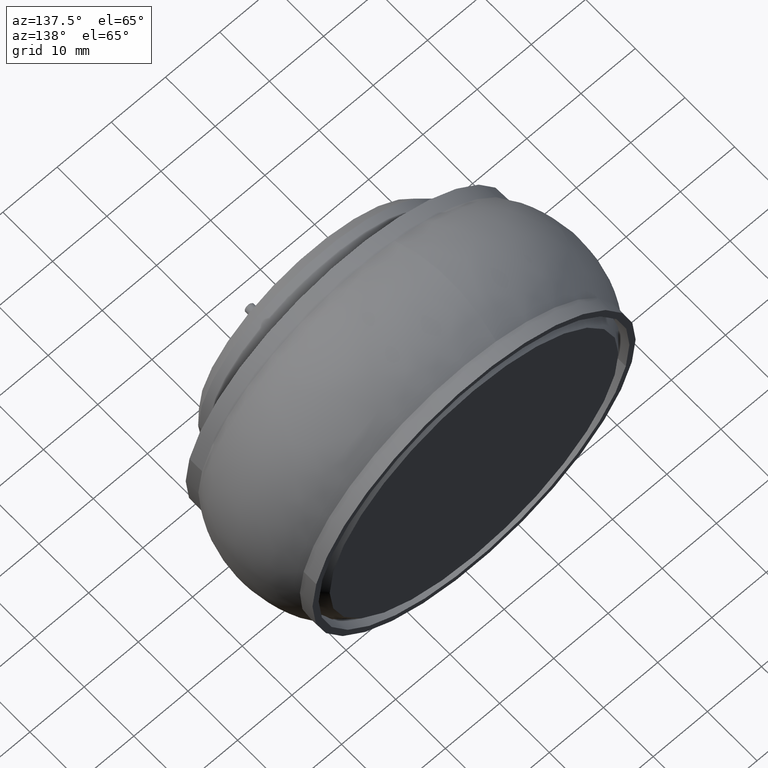
[diagram: clean part render]
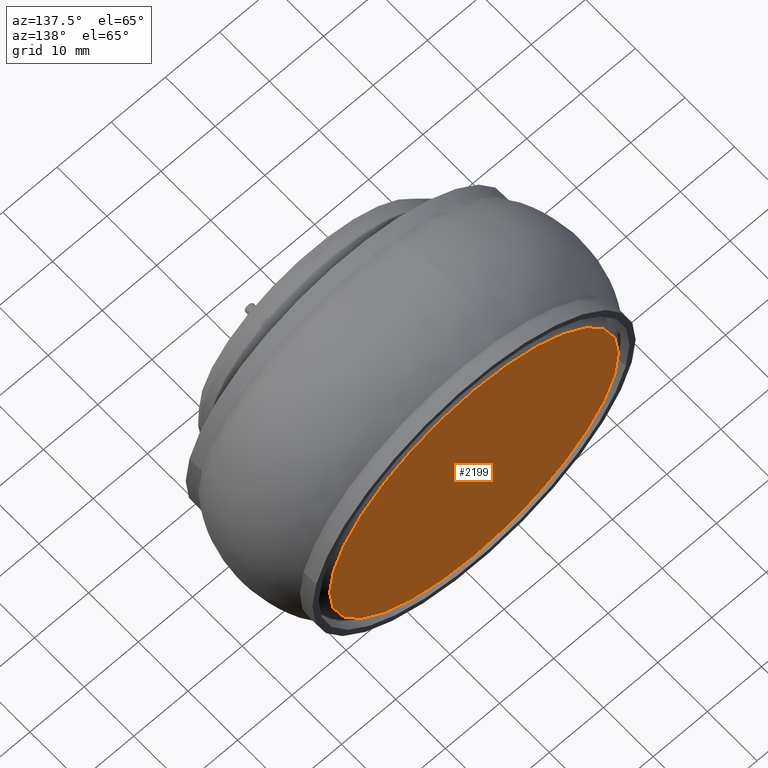
[diagram: same view with one face highlighted and labeled with its STEP entity id]
A machine part, auxiliary view. The second image highlights one B-rep face of the part: STEP entity #2199.
In plain terms, the highlighted planar face has unit normal (-0, 1, 0).
Its self-contained STEP definition (entity closure, byte-faithful):
#428 = DIRECTION ( 'NONE',  ( -0.0000000000000000000, 1.000000000000000000, -0.0000000000000000000 ) ) ;
#2199 = ADVANCED_FACE ( 'NONE', ( #10075 ), #3605, .T. ) ;
#2598 = DIRECTION ( 'NONE',  ( -0.0000000000000000000, 1.000000000000000000, -0.0000000000000000000 ) ) ;
#3605 = PLANE ( 'NONE',  #6462 ) ;
#3834 = DIRECTION ( 'NONE',  ( 0.0000000000000000000, 0.0000000000000000000, 1.000000000000000000 ) ) ;
#3905 = ORIENTED_EDGE ( 'NONE', *, *, #6062, .T. ) ;
#5714 = ORIENTED_EDGE ( 'NONE', *, *, #6251, .T. ) ;
#5833 = CARTESIAN_POINT ( 'NONE',  ( 0.0000000000000000000, 0.5490000000000003800, -1.048640772573399900 ) ) ;
#6062 = EDGE_CURVE ( 'NONE', #11084, #8089, #7871, .T. ) ;
#6251 = EDGE_CURVE ( 'NONE', #8089, #11084, #7698, .T. ) ;
#6462 = AXIS2_PLACEMENT_3D ( 'NONE', #14937, #7450, #12369 ) ;
#6712 = CARTESIAN_POINT ( 'NONE',  ( 0.0000000000000000000, 0.5490000000000003800, 0.0000000000000000000 ) ) ;
#7450 = DIRECTION ( 'NONE',  ( -0.0000000000000000000, 1.000000000000000000, 0.0000000000000000000 ) ) ;
#7698 = CIRCLE ( 'NONE', #9948, 1.048640772573399900 ) ;
#7871 = CIRCLE ( 'NONE', #15799, 1.048640772573399900 ) ;
#8089 = VERTEX_POINT ( 'NONE', #9384 ) ;
#9384 = CARTESIAN_POINT ( 'NONE',  ( 1.327077203557579100E-016, 0.5490000000000003800, 1.048640772573399900 ) ) ;
#9836 = EDGE_LOOP ( 'NONE', ( #3905, #5714 ) ) ;
#9948 = AXIS2_PLACEMENT_3D ( 'NONE', #6712, #428, #14062 ) ;
#9996 = CARTESIAN_POINT ( 'NONE',  ( 0.0000000000000000000, 0.5490000000000003800, 0.0000000000000000000 ) ) ;
#10075 = FACE_OUTER_BOUND ( 'NONE', #9836, .T. ) ;
#11084 = VERTEX_POINT ( 'NONE', #5833 ) ;
#12369 = DIRECTION ( 'NONE',  ( 0.0000000000000000000, 0.0000000000000000000, 1.000000000000000000 ) ) ;
#14062 = DIRECTION ( 'NONE',  ( 0.0000000000000000000, 0.0000000000000000000, 1.000000000000000000 ) ) ;
#14937 = CARTESIAN_POINT ( 'NONE',  ( -1.118640772573400200, 0.5490000000000003800, 0.0000000000000000000 ) ) ;
#15799 = AXIS2_PLACEMENT_3D ( 'NONE', #9996, #2598, #3834 ) ;